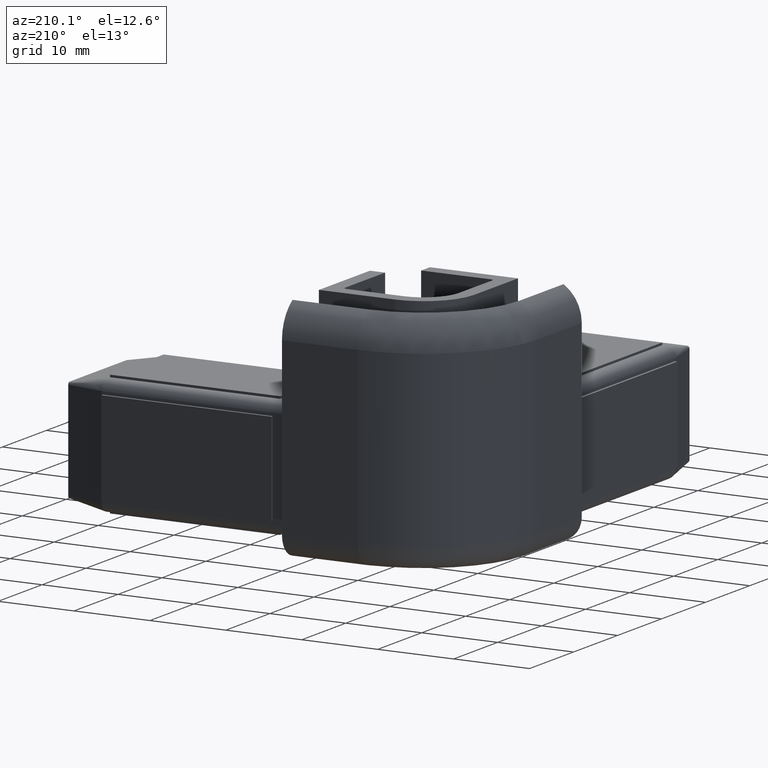
[diagram: clean part render]
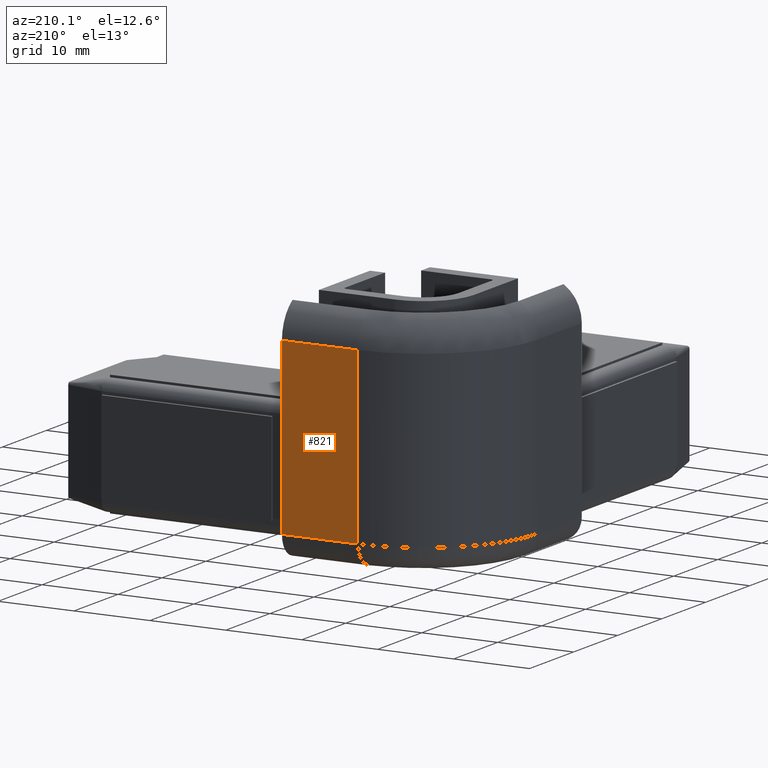
[diagram: same view with one face highlighted and labeled with its STEP entity id]
A machine part, auxiliary view. The second image highlights one B-rep face of the part: STEP entity #821.
In plain terms, the highlighted planar face has unit normal (0, 1, 0).
Its self-contained STEP definition (entity closure, byte-faithful):
#481=CARTESIAN_POINT('',(-29.999990346764093,10.000000000000114,15.649168699187417));
#482=VERTEX_POINT('',#481);
#483=CARTESIAN_POINT('',(-39.999990346764093,10.000000000000114,15.649168699187417));
#484=VERTEX_POINT('',#483);
#485=CARTESIAN_POINT('',(-29.999990346764093,10.000000000000114,15.649168699187417));
#486=DIRECTION('',(-1.0,0.0,0.0));
#487=VECTOR('',#486,10.0);
#488=LINE('',#485,#487);
#489=EDGE_CURVE('',#482,#484,#488,.T.);
#733=CARTESIAN_POINT('',(-39.999990346764093,10.000000000000114,-6.999999999999719));
#734=VERTEX_POINT('',#733);
#742=CARTESIAN_POINT('',(-29.999990346764093,10.000000000000114,-6.999999999999719));
#743=VERTEX_POINT('',#742);
#744=CARTESIAN_POINT('',(-29.999990346764093,10.000000000000114,-6.999999999999719));
#745=DIRECTION('',(-1.0,0.0,0.0));
#746=VECTOR('',#745,10.0);
#747=LINE('',#744,#746);
#748=EDGE_CURVE('',#743,#734,#747,.T.);
#787=CARTESIAN_POINT('',(-39.999990346764093,10.000000000000114,-6.999999999999719));
#788=DIRECTION('',(0.0,0.0,1.0));
#789=VECTOR('',#788,22.649168699187136);
#790=LINE('',#787,#789);
#791=EDGE_CURVE('',#734,#484,#790,.T.);
#805=CARTESIAN_POINT('',(-29.999990346764093,10.000000000000114,-9.999999999999719));
#806=DIRECTION('',(0.0,1.0,0.0));
#807=DIRECTION('',(-1.0,0.0,0.0));
#808=AXIS2_PLACEMENT_3D('',#805,#806,#807);
#809=PLANE('',#808);
#810=CARTESIAN_POINT('',(-29.999990346764093,10.000000000000114,-6.999999999999719));
#811=DIRECTION('',(0.0,0.0,1.0));
#812=VECTOR('',#811,22.649168699187136);
#813=LINE('',#810,#812);
#814=EDGE_CURVE('',#743,#482,#813,.T.);
#815=ORIENTED_EDGE('',*,*,#814,.F.);
#816=ORIENTED_EDGE('',*,*,#748,.T.);
#817=ORIENTED_EDGE('',*,*,#791,.T.);
#818=ORIENTED_EDGE('',*,*,#489,.F.);
#819=EDGE_LOOP('',(#815,#816,#817,#818));
#820=FACE_OUTER_BOUND('',#819,.T.);
#821=ADVANCED_FACE('',(#820),#809,.T.);